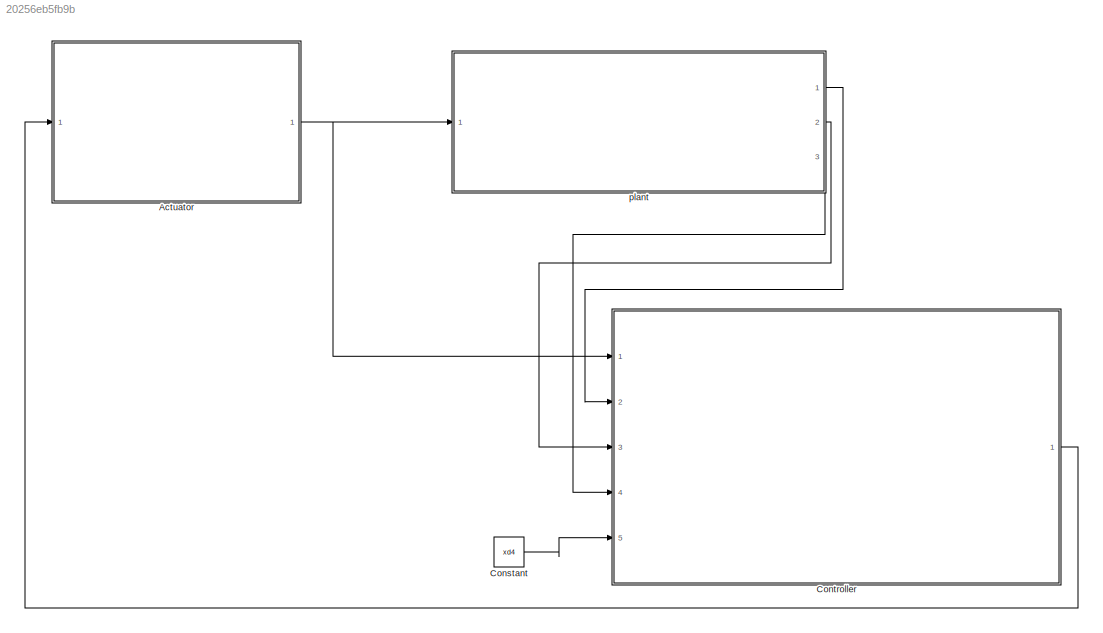
MODEL slx_20256eb5fb9b
KIND model
CONFIG AbsTol = auto
CONFIG EnableMultiTasking = off
CONFIG FixedStep = auto
CONFIG MaxStep = auto
CONFIG MinStep = auto
CONFIG RelTol = 1e-3
CONFIG SampleTimeConstraint = Unconstrained
CONFIG SolverName = VariableStepAuto
CONFIG StartTime = 0.0
CONFIG StopTime = 100
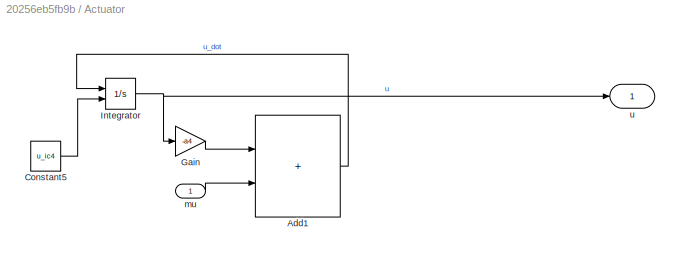
BLOCK [SubSystem] Actuator
  Ports = [1, 1]
  RequestExecContextInheritance = off
BLOCK [Sum] Actuator/Add1
  IconShape = rectangular
  Ports = [2, 1]
BLOCK [Constant] Actuator/Constant5
  Value = u_ic4
BLOCK [Gain] Actuator/Gain
  Gain = -a4
BLOCK [Integrator] Actuator/Integrator
  InitialConditionSource = external
  Ports = [2, 1]
BLOCK [Inport] Actuator/mu
BLOCK [Outport] Actuator/u
BLOCK [Constant] Constant
  Value = xd4
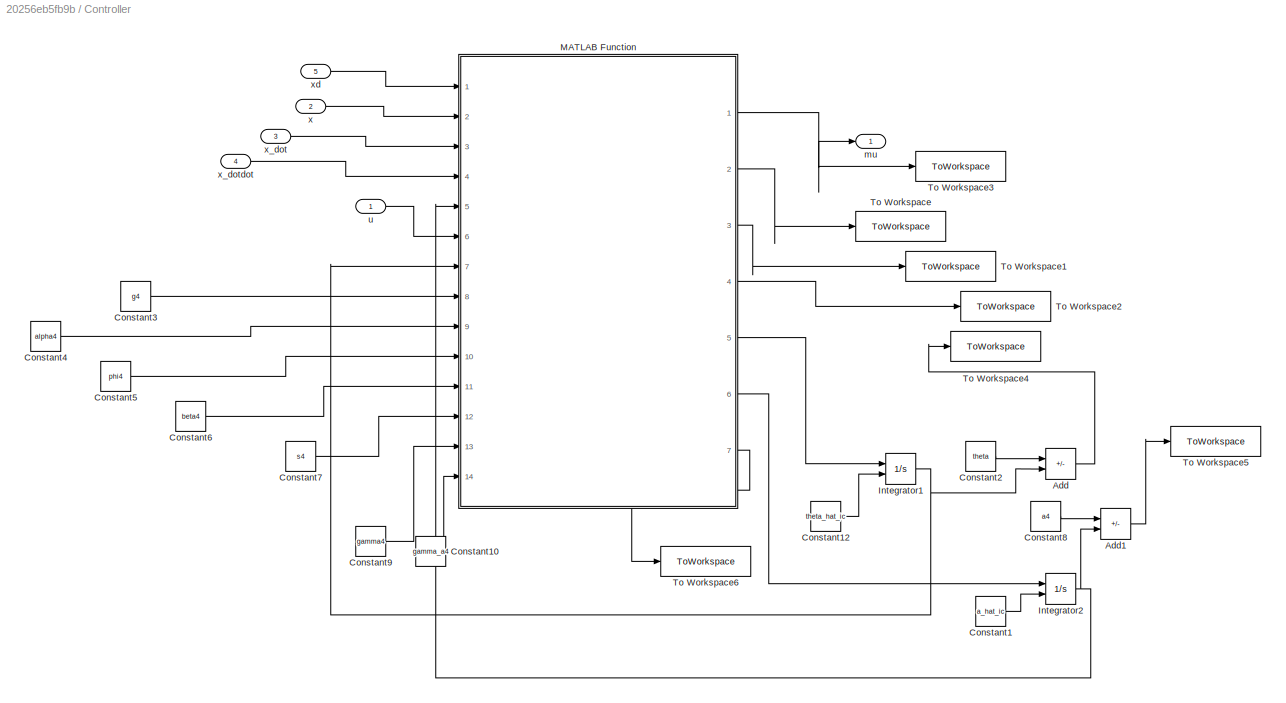
BLOCK [SubSystem] Controller
  Ports = [5, 1]
  RequestExecContextInheritance = off
BLOCK [Sum] Controller/Add
  IconShape = rectangular
  Inputs = +-
  Ports = [2, 1]
BLOCK [Sum] Controller/Add1
  IconShape = rectangular
  Inputs = +-
  Ports = [2, 1]
BLOCK [Constant] Controller/Constant1
  Value = a_hat_ic
BLOCK [Constant] Controller/Constant10
  Value = gamma_a4
BLOCK [Constant] Controller/Constant12
  Value = theta_hat_ic
BLOCK [Constant] Controller/Constant2
  Value = theta
BLOCK [Constant] Controller/Constant3
  Value = g4
BLOCK [Constant] Controller/Constant4
  Value = alpha4
BLOCK [Constant] Controller/Constant5
  Value = phi4
BLOCK [Constant] Controller/Constant6
  Value = beta4
BLOCK [Constant] Controller/Constant7
  Value = s4
BLOCK [Constant] Controller/Constant8
  Value = a4
BLOCK [Constant] Controller/Constant9
  Value = gamma4
BLOCK [Integrator] Controller/Integrator1
  InitialConditionSource = external
  Ports = [2, 1]
BLOCK [Integrator] Controller/Integrator2
  InitialConditionSource = external
  Ports = [2, 1]
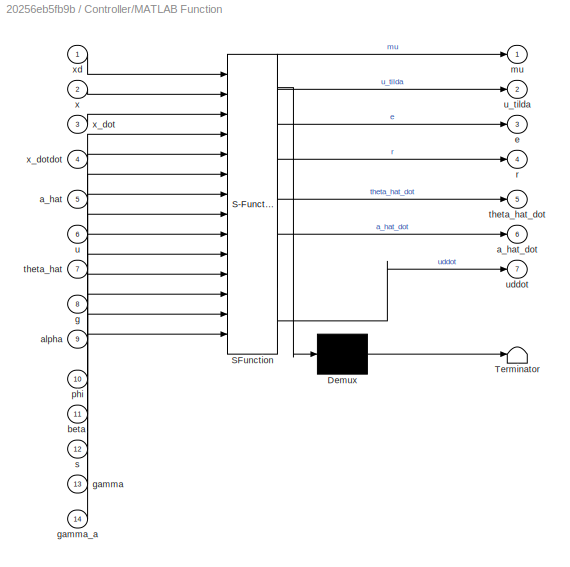
BLOCK [SubSystem] Controller/MATLAB Function
  ErrorFcn = Stateflow.Translate.translate
  PermitHierarchicalResolution = ExplicitOnly
  Ports = [14, 7]
  RequestExecContextInheritance = off
  SFBlockType = MATLAB Function
  TreatAsAtomicUnit = on
BLOCK [Demux] Controller/MATLAB Function/ Demux 
  Outputs = 1
  Ports = [1, 1]
BLOCK [S-Function] Controller/MATLAB Function/ SFunction 
  EnableBusSupport = on
  FunctionName = sf_sfun
  PortCounts = [14 8]
  Ports = [14, 8]
  SFcnIsStateOwnerBlock = off
  SFunctionDeploymentMode = off
  Tag = Stateflow S-Function 2
BLOCK [Terminator] Controller/MATLAB Function/ Terminator 
BLOCK [Inport] Controller/MATLAB Function/a_hat
  Port = 5
BLOCK [Outport] Controller/MATLAB Function/a_hat_dot
  Port = 6
BLOCK [Inport] Controller/MATLAB Function/alpha
  Port = 9
BLOCK [Inport] Controller/MATLAB Function/beta
  Port = 11
BLOCK [Outport] Controller/MATLAB Function/e
  Port = 3
BLOCK [Inport] Controller/MATLAB Function/g
  Port = 8
BLOCK [Inport] Controller/MATLAB Function/gamma
  Port = 13
BLOCK [Inport] Controller/MATLAB Function/gamma_a
  Port = 14
BLOCK [Outport] Controller/MATLAB Function/mu
BLOCK [Inport] Controller/MATLAB Function/phi
  Port = 10
BLOCK [Outport] Controller/MATLAB Function/r
  Port = 4
BLOCK [Inport] Controller/MATLAB Function/s
  Port = 12
BLOCK [Inport] Controller/MATLAB Function/theta_hat
  Port = 7
BLOCK [Outport] Controller/MATLAB Function/theta_hat_dot
  Port = 5
BLOCK [Inport] Controller/MATLAB Function/u
  Port = 6
BLOCK [Outport] Controller/MATLAB Function/u_tilda
  Port = 2
BLOCK [Outport] Controller/MATLAB Function/uddot
  Port = 7
BLOCK [Inport] Controller/MATLAB Function/x
  Port = 2
BLOCK [Inport] Controller/MATLAB Function/x_dot
  Port = 3
BLOCK [Inport] Controller/MATLAB Function/x_dotdot
  Port = 4
BLOCK [Inport] Controller/MATLAB Function/xd
BLOCK [ToWorkspace] Controller/To Workspace
  FixptAsFi = on
  MaxDataPoints = inf
  Ports = [1]
  SampleTime = -1
  SaveFormat = Timeseries
  VariableName = u_tilda_t
BLOCK [ToWorkspace] Controller/To Workspace1
  FixptAsFi = on
  MaxDataPoints = inf
  Ports = [1]
  SampleTime = -1
  SaveFormat = Timeseries
  VariableName = e_t
BLOCK [ToWorkspace] Controller/To Workspace2
  FixptAsFi = on
  MaxDataPoints = inf
  Ports = [1]
  SampleTime = -1
  SaveFormat = Timeseries
  VariableName = r_t
BLOCK [ToWorkspace] Controller/To Workspace3
  FixptAsFi = on
  MaxDataPoints = inf
  Ports = [1]
  SampleTime = -1
  SaveFormat = Timeseries
  VariableName = mu_t
BLOCK [ToWorkspace] Controller/To Workspace4
  FixptAsFi = on
  MaxDataPoints = inf
  Ports = [1]
  SampleTime = -1
  SaveFormat = Timeseries
  VariableName = theta_tilda_t
BLOCK [ToWorkspace] Controller/To Workspace5
  FixptAsFi = on
  MaxDataPoints = inf
  Ports = [1]
  SampleTime = -1
  SaveFormat = Timeseries
  VariableName = a_tilda_t
BLOCK [ToWorkspace] Controller/To Workspace6
  FixptAsFi = on
  MaxDataPoints = inf
  Ports = [1]
  SampleTime = -1
  SaveFormat = Timeseries
  VariableName = ud_t1
BLOCK [Outport] Controller/mu
BLOCK [Inport] Controller/u
BLOCK [Inport] Controller/x
  Port = 2
BLOCK [Inport] Controller/x_dot
  Port = 3
BLOCK [Inport] Controller/x_dotdot
  Port = 4
BLOCK [Inport] Controller/xd
  Port = 5
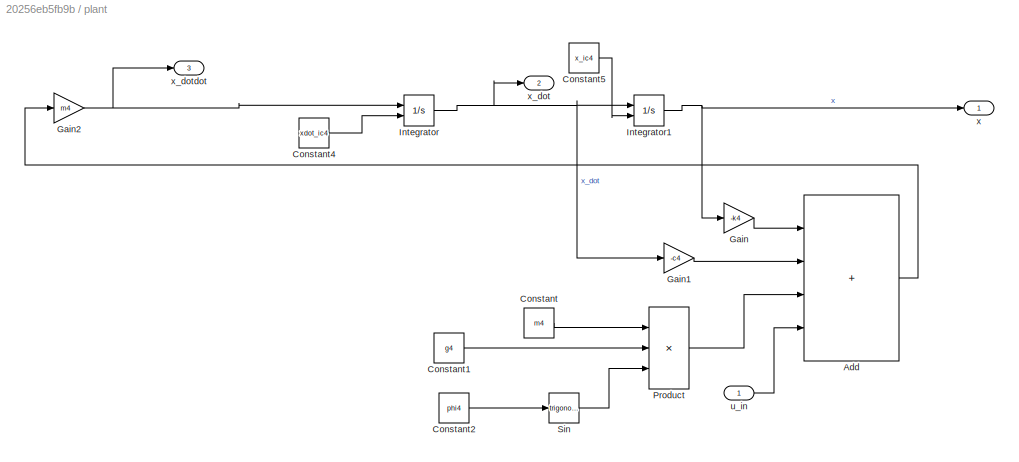
BLOCK [SubSystem] plant
  Ports = [1, 3]
  RequestExecContextInheritance = off
BLOCK [Sum] plant/Add
  IconShape = rectangular
  Inputs = ++++
  Ports = [4, 1]
BLOCK [Constant] plant/Constant
  Value = m4
BLOCK [Constant] plant/Constant1
  Value = g4
BLOCK [Constant] plant/Constant2
  Value = phi4
BLOCK [Constant] plant/Constant4
  Value = xdot_ic4
BLOCK [Constant] plant/Constant5
  Value = x_ic4
BLOCK [Gain] plant/Gain
  Gain = -k4
BLOCK [Gain] plant/Gain1
  Gain = -c4
BLOCK [Gain] plant/Gain2
  Gain = m4
BLOCK [Integrator] plant/Integrator
  InitialConditionSource = external
  Ports = [2, 1]
BLOCK [Integrator] plant/Integrator1
  InitialConditionSource = external
  Ports = [2, 1]
BLOCK [Product] plant/Product
  Inputs = 3
  Ports = [3, 1]
BLOCK [Trigonometry] plant/Sin
  Ports = [1, 1]
BLOCK [Inport] plant/u_in
BLOCK [Outport] plant/x
BLOCK [Outport] plant/x_dot
  Port = 2
BLOCK [Outport] plant/x_dotdot
  Port = 3
LINE Actuator/Add1:1 -> Actuator/Integrator:1
LINE Actuator/Constant5:1 -> Actuator/Integrator:2
LINE Actuator/Gain:1 -> Actuator/Add1:1
NET Actuator/Integrator:1 -> Actuator/Gain:1, Actuator/u:1
LINE Actuator/mu:1 -> Actuator/Add1:2
NET Actuator:1 -> Controller:1, plant:1
LINE Constant:1 -> Controller:5
LINE Controller/Add1:1 -> Controller/To Workspace5:1
LINE Controller/Add:1 -> Controller/To Workspace4:1
LINE Controller/Constant10:1 -> Controller/MATLAB Function:14
LINE Controller/Constant12:1 -> Controller/Integrator1:2
LINE Controller/Constant1:1 -> Controller/Integrator2:2
LINE Controller/Constant2:1 -> Controller/Add:1
LINE Controller/Constant3:1 -> Controller/MATLAB Function:8
LINE Controller/Constant4:1 -> Controller/MATLAB Function:9
LINE Controller/Constant5:1 -> Controller/MATLAB Function:10
LINE Controller/Constant6:1 -> Controller/MATLAB Function:11
LINE Controller/Constant7:1 -> Controller/MATLAB Function:12
LINE Controller/Constant8:1 -> Controller/Add1:1
LINE Controller/Constant9:1 -> Controller/MATLAB Function:13
NET Controller/Integrator1:1 -> Controller/Add:2, Controller/MATLAB Function:7
NET Controller/Integrator2:1 -> Controller/Add1:2, Controller/MATLAB Function:5
NET Controller/MATLAB Function:1 -> Controller/To Workspace3:1, Controller/mu:1
LINE Controller/MATLAB Function:2 -> Controller/To Workspace:1
LINE Controller/MATLAB Function:3 -> Controller/To Workspace1:1
LINE Controller/MATLAB Function:4 -> Controller/To Workspace2:1
LINE Controller/MATLAB Function:5 -> Controller/Integrator1:1
LINE Controller/MATLAB Function:6 -> Controller/Integrator2:1
LINE Controller/MATLAB Function:7 -> Controller/To Workspace6:1
LINE Controller/u:1 -> Controller/MATLAB Function:6
LINE Controller/x:1 -> Controller/MATLAB Function:2
LINE Controller/x_dot:1 -> Controller/MATLAB Function:3
LINE Controller/x_dotdot:1 -> Controller/MATLAB Function:4
LINE Controller/xd:1 -> Controller/MATLAB Function:1
LINE Controller:1 -> Actuator:1
LINE plant/Add:1 -> plant/Gain2:1
LINE plant/Constant1:1 -> plant/Product:2
LINE plant/Constant2:1 -> plant/Sin:1
LINE plant/Constant4:1 -> plant/Integrator:2
LINE plant/Constant5:1 -> plant/Integrator1:2
LINE plant/Constant:1 -> plant/Product:1
LINE plant/Gain1:1 -> plant/Add:2
NET plant/Gain2:1 -> plant/Integrator:1, plant/x_dotdot:1
LINE plant/Gain:1 -> plant/Add:1
NET plant/Integrator1:1 -> plant/Gain:1, plant/x:1
NET plant/Integrator:1 -> plant/Gain1:1, plant/Integrator1:1, plant/x_dot:1
LINE plant/Product:1 -> plant/Add:3
LINE plant/Sin:1 -> plant/Product:3
LINE plant/u_in:1 -> plant/Add:4
LINE plant:1 -> Controller:2
LINE plant:2 -> Controller:3
LINE plant:3 -> Controller:4
note: NET lines group one-source signal fan-out (src -> all destinations, sorted); 1:1 wires keep LINE
CHART Controller/MATLAB Function states=1 transitions=1
  STATE_LABEL 'eML_blk_kernel()'
  STATE_LABEL "SCRIPT:\nfunction [mu,u_tilda,e,r, theta_hat_dot, a_hat_dot,uddot] = fcn(xd,x,x_dot,x_dotdot, a_hat, u, theta_hat, g, alpha, phi, beta, s, gamma, gamma_a)\ne = xd - x;\ne_dot = -x_dot;\ne_dotdot = -x_dotdot;\nr = e_dot + alpha*e;\nr_dot = e_dotdot + alpha*e_dot;\nY = [-g*sin(phi)+alpha*e_dot, x_dot, x];\nY_dot = [alpha*e_dotdot, x_dotdot, x_dot];\ntheta_hat_dot = gamma*Y'*r;\nud = e + beta*r + Y*theta_hat;\n...<+152ch>"
CHART  states=0 transitions=0
